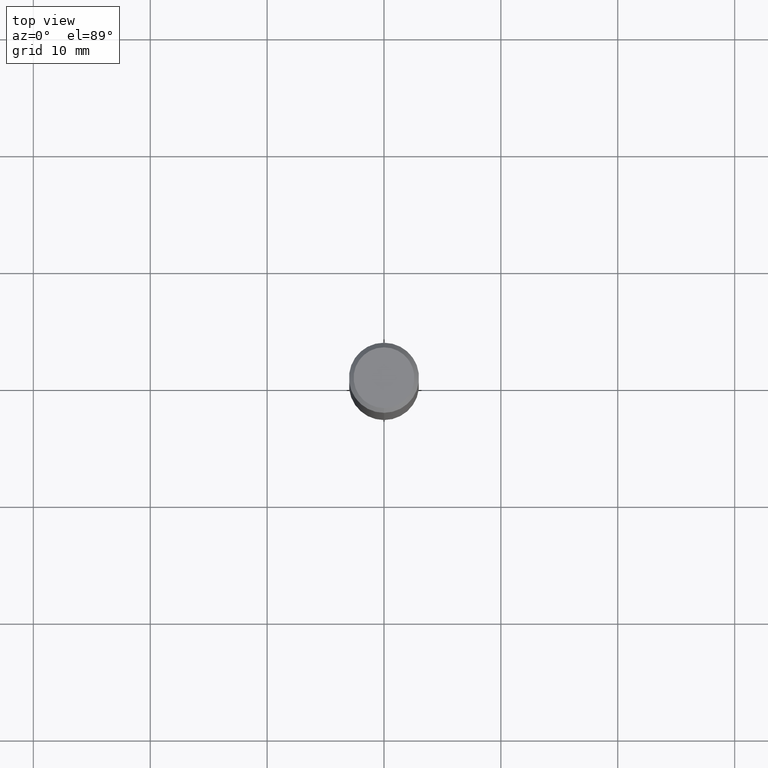
[diagram: clean part render]
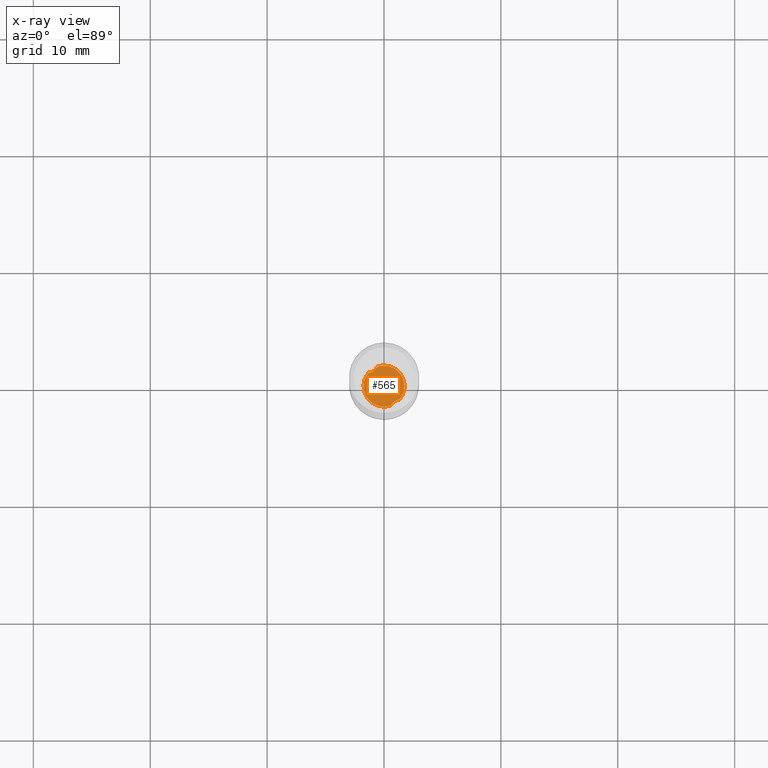
[diagram: x-ray — body ghosted, one internal face saturated and labeled with its STEP entity id]
A machine part, top view, then the same camera in x-ray: the body is ghosted and one INTERNAL B-rep face — a face not visible from any outside direction — is saturated and labeled: STEP entity #565.
In plain terms, the highlighted planar face has unit normal (-0, 0, 1).
Its self-contained STEP definition (entity closure, byte-faithful):
#353=VERTEX_POINT('',#854);
#361=VERTEX_POINT('',#862);
#377=VERTEX_POINT('',#880);
#465=EDGE_CURVE('',#353,#377,#976,.T.);
#503=EDGE_CURVE('',#513,#361,#1018,.T.);
#505=EDGE_CURVE('',#679,#513,#1020,.T.);
#513=VERTEX_POINT('',#1028);
#549=EDGE_CURVE('',#679,#377,#1068,.T.);
#565=ADVANCED_FACE('',(#1086),#1087,.T.);
#679=VERTEX_POINT('',#1209);
#695=EDGE_CURVE('',#709,#361,#1227,.T.);
#709=VERTEX_POINT('',#1241);
#723=EDGE_CURVE('',#709,#353,#1256,.T.);
#854=CARTESIAN_POINT('',(-2.17810770136054E-016,1.7499,-42.0));
#862=CARTESIAN_POINT('',(-1.32427233573329,1.14387621306306,-42.0));
#880=CARTESIAN_POINT('',(1.32427233573329,-1.14387621306307,-42.0));
#976=CIRCLE('',#2816,1.7499);
#1018=CIRCLE('',#3014,1.7499);
#1020=CIRCLE('',#3017,1.7499);
#1028=CARTESIAN_POINT('',(2.17810770148321E-016,-1.7499,-42.0));
#1068=B_SPLINE_CURVE_WITH_KNOTS('',3,(#3188,#3189,#3190,#3191,#3192,#3193,#3194,#3195,#3196,#3197,#3198,#3199),.UNSPECIFIED.,.F.,.F.,(4,2,2,2,2,4),(0.0,0.384957045893183,0.734234217413705,1.08274130357949,1.32668197842899,1.5823507402421),.UNSPECIFIED.);
#1086=FACE_OUTER_BOUND('',#3403,.T.);
#1087=PLANE('',#3404);
#1209=CARTESIAN_POINT('',(0.599530194315321,-1.64399317398347,-42.0));
#1227=B_SPLINE_CURVE_WITH_KNOTS('',3,(#4972,#4973,#4974,#4975,#4976,#4977,#4978,#4979,#4980,#4981,#4982,#4983),.UNSPECIFIED.,.F.,.F.,(4,2,2,2,2,4),(0.0,0.384957045893081,0.734234217413492,1.08274130357924,1.32668197842879,1.58235074024192),.UNSPECIFIED.);
#1241=CARTESIAN_POINT('',(-0.599530194315325,1.64399317398347,-42.0));
#1256=CIRCLE('',#5110,1.7499);
#2816=AXIS2_PLACEMENT_3D('',#5393,#5394,#5395);
#3014=AXIS2_PLACEMENT_3D('',#5444,#5445,#5446);
#3017=AXIS2_PLACEMENT_3D('',#5447,#5448,#5449);
#3188=CARTESIAN_POINT('',(0.538665536592743,-1.7999,-42.0));
#3189=CARTESIAN_POINT('',(0.575532059946053,-1.67699097208578,-42.0));
#3190=CARTESIAN_POINT('',(0.633945541046537,-1.56247678633646,-41.9999999999935));
#3191=CARTESIAN_POINT('',(0.788668706555469,-1.37357439376174,-41.9999999999935));
#3192=CARTESIAN_POINT('',(0.878342270021925,-1.29975782919305,-42.0000000000003));
#3193=CARTESIAN_POINT('',(1.08318731522385,-1.19099863858267,-42.0000000000003));
#3194=CARTESIAN_POINT('',(1.19460307200928,-1.15791802467486,-42.0));
#3195=CARTESIAN_POINT('',(1.3905635784393,-1.13653380238859,-42.0));
#3196=CARTESIAN_POINT('',(1.47198590751966,-1.13789158856948,-42.0));
#3197=CARTESIAN_POINT('',(1.63694340579489,-1.15921540055713,-42.0));
#3198=CARTESIAN_POINT('',(1.71985551725624,-1.17999521888445,-42.0));
#3199=CARTESIAN_POINT('',(1.7999,-1.20909944302607,-42.0));
#3403=EDGE_LOOP('',(#5523,#5524,#5525,#5526,#5527,#5528));
#3404=AXIS2_PLACEMENT_3D('',#5529,#5530,#5531);
#4972=CARTESIAN_POINT('',(-0.538665536592745,1.7999,-42.0));
#4973=CARTESIAN_POINT('',(-0.575532059946045,1.67699097208581,-42.0));
#4974=CARTESIAN_POINT('',(-0.633945541046524,1.56247678633646,-41.9999999999935));
#4975=CARTESIAN_POINT('',(-0.788668706555471,1.37357439376174,-41.9999999999935));
#4976=CARTESIAN_POINT('',(-0.878342270021926,1.29975782919305,-42.0000000000003));
#4977=CARTESIAN_POINT('',(-1.08318731522387,1.19099863858266,-42.0000000000003));
#4978=CARTESIAN_POINT('',(-1.19460307200932,1.15791802467486,-42.0));
#4979=CARTESIAN_POINT('',(-1.39056357843931,1.1365338023886,-42.0));
#4980=CARTESIAN_POINT('',(-1.47198590751968,1.13789158856949,-42.0));
#4981=CARTESIAN_POINT('',(-1.63694340579488,1.15921540055714,-42.0));
#4982=CARTESIAN_POINT('',(-1.71985551725622,1.17999521888445,-42.0));
#4983=CARTESIAN_POINT('',(-1.7999,1.20909944302608,-42.0));
#5110=AXIS2_PLACEMENT_3D('',#5684,#5685,#5686);
#5393=CARTESIAN_POINT('',(0.0,0.0,-42.0));
#5394=DIRECTION('',(0.0,0.0,-1.0));
#5395=DIRECTION('',(0.0,1.0,0.0));
#5444=CARTESIAN_POINT('',(0.0,0.0,-42.0));
#5445=DIRECTION('',(0.0,0.0,-1.0));
#5446=DIRECTION('',(0.0,1.0,0.0));
#5447=CARTESIAN_POINT('',(0.0,0.0,-42.0));
#5448=DIRECTION('',(0.0,0.0,-1.0));
#5449=DIRECTION('',(0.0,1.0,0.0));
#5523=ORIENTED_EDGE('',*,*,#549,.T.);
#5524=ORIENTED_EDGE('',*,*,#465,.F.);
#5525=ORIENTED_EDGE('',*,*,#723,.F.);
#5526=ORIENTED_EDGE('',*,*,#695,.T.);
#5527=ORIENTED_EDGE('',*,*,#503,.F.);
#5528=ORIENTED_EDGE('',*,*,#505,.F.);
#5529=CARTESIAN_POINT('',(0.0,0.87495,-42.0));
#5530=DIRECTION('',(-0.0,0.0,1.0));
#5531=DIRECTION('',(0.0,-1.0,0.0));
#5684=CARTESIAN_POINT('',(0.0,0.0,-42.0));
#5685=DIRECTION('',(0.0,0.0,-1.0));
#5686=DIRECTION('',(0.0,1.0,0.0));